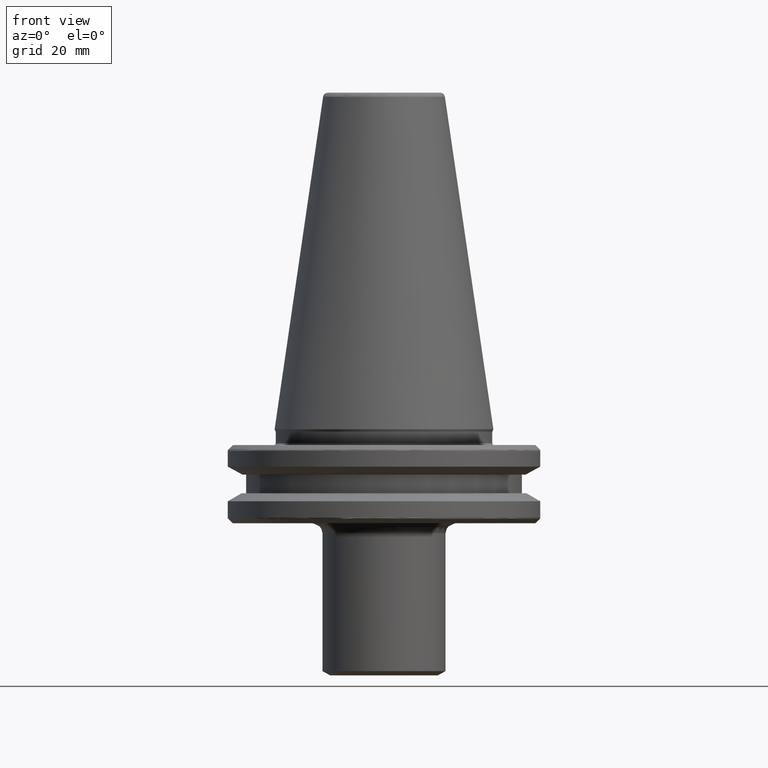
[diagram: clean part render]
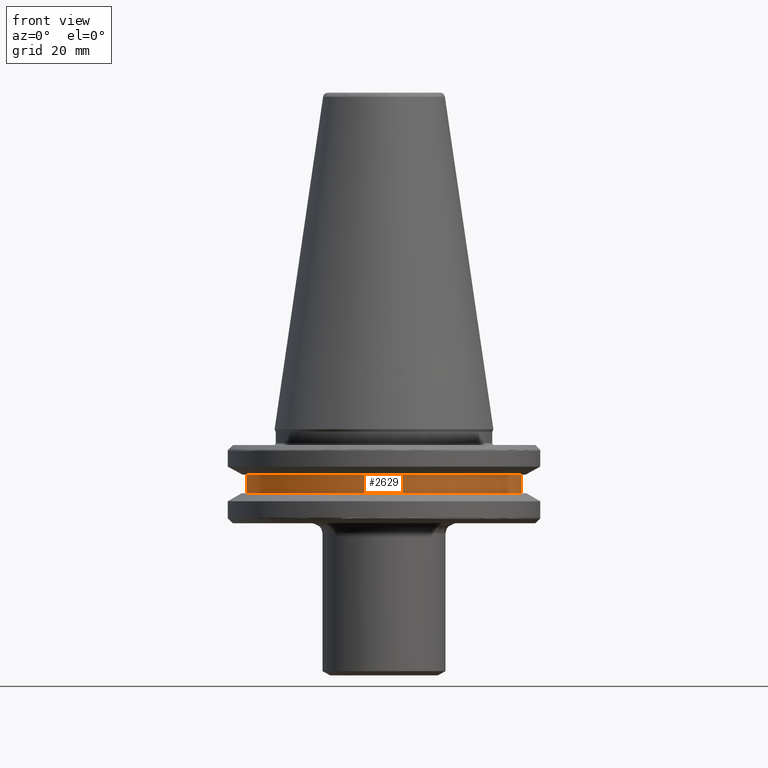
[diagram: same view with one face highlighted and labeled with its STEP entity id]
A machine part, front view. The second image highlights one B-rep face of the part: STEP entity #2629.
In plain terms, the highlighted cylindrical surface (partial cylindrical patch) has radius 28 mm, axis along (0, 0, 1).
Its self-contained STEP definition (entity closure, byte-faithful):
#116 = CARTESIAN_POINT ( 'NONE',  ( 28.00000000000000000, 0.0000000000000000000, -12.99999999999999800 ) ) ;
#212 = DIRECTION ( 'NONE',  ( -0.0000000000000000000, -0.0000000000000000000, -1.000000000000000000 ) ) ;
#371 = DIRECTION ( 'NONE',  ( 1.000000000000000000, 0.0000000000000000000, 0.0000000000000000000 ) ) ;
#383 = AXIS2_PLACEMENT_3D ( 'NONE', #1083, #1113, #2713 ) ;
#479 = AXIS2_PLACEMENT_3D ( 'NONE', #980, #212, #971 ) ;
#548 = ORIENTED_EDGE ( 'NONE', *, *, #550, .F. ) ;
#550 = EDGE_CURVE ( 'NONE', #1000, #2178, #2776, .T. ) ;
#581 = EDGE_CURVE ( 'NONE', #1892, #921, #883, .T. ) ;
#608 = EDGE_CURVE ( 'NONE', #921, #2178, #2128, .T. ) ;
#738 = DIRECTION ( 'NONE',  ( 0.0000000000000000000, 0.0000000000000000000, 1.000000000000000000 ) ) ;
#761 = CARTESIAN_POINT ( 'NONE',  ( -28.00000000000000000, 3.429011037612589300E-015, 69.75694866325665100 ) ) ;
#868 = CARTESIAN_POINT ( 'NONE',  ( 28.00000000000000000, 0.0000000000000000000, -9.199999999999999300 ) ) ;
#883 = LINE ( 'NONE', #1474, #1749 ) ;
#921 = VERTEX_POINT ( 'NONE', #868 ) ;
#971 = DIRECTION ( 'NONE',  ( 1.000000000000000000, 0.0000000000000000000, 0.0000000000000000000 ) ) ;
#980 = CARTESIAN_POINT ( 'NONE',  ( 0.0000000000000000000, 0.0000000000000000000, -9.199999999999999300 ) ) ;
#1000 = VERTEX_POINT ( 'NONE', #2884 ) ;
#1083 = CARTESIAN_POINT ( 'NONE',  ( 0.0000000000000000000, 0.0000000000000000000, -12.99999999999999800 ) ) ;
#1099 = FACE_OUTER_BOUND ( 'NONE', #2853, .T. ) ;
#1113 = DIRECTION ( 'NONE',  ( 0.0000000000000000000, 0.0000000000000000000, 1.000000000000000000 ) ) ;
#1196 = CARTESIAN_POINT ( 'NONE',  ( -28.00000000000000000, 3.429011037612589300E-015, -9.199999999999999300 ) ) ;
#1242 = DIRECTION ( 'NONE',  ( 0.0000000000000000000, 0.0000000000000000000, 1.000000000000000000 ) ) ;
#1253 = ORIENTED_EDGE ( 'NONE', *, *, #581, .T. ) ;
#1433 = DIRECTION ( 'NONE',  ( 0.0000000000000000000, 0.0000000000000000000, 1.000000000000000000 ) ) ;
#1474 = CARTESIAN_POINT ( 'NONE',  ( 28.00000000000000000, 0.0000000000000000000, 69.75694866325665100 ) ) ;
#1668 = EDGE_CURVE ( 'NONE', #1000, #1892, #2494, .T. ) ;
#1749 = VECTOR ( 'NONE', #738, 1000.000000000000000 ) ;
#1879 = ORIENTED_EDGE ( 'NONE', *, *, #608, .T. ) ;
#1892 = VERTEX_POINT ( 'NONE', #116 ) ;
#1998 = AXIS2_PLACEMENT_3D ( 'NONE', #2988, #1433, #371 ) ;
#2128 = CIRCLE ( 'NONE', #479, 28.00000000000000000 ) ;
#2178 = VERTEX_POINT ( 'NONE', #1196 ) ;
#2336 = VECTOR ( 'NONE', #1242, 1000.000000000000000 ) ;
#2494 = CIRCLE ( 'NONE', #383, 28.00000000000000000 ) ;
#2629 = ADVANCED_FACE ( 'NONE', ( #1099 ), #2806, .T. ) ;
#2713 = DIRECTION ( 'NONE',  ( 1.000000000000000000, 0.0000000000000000000, 0.0000000000000000000 ) ) ;
#2776 = LINE ( 'NONE', #761, #2336 ) ;
#2806 = CYLINDRICAL_SURFACE ( 'NONE', #1998, 28.00000000000000000 ) ;
#2853 = EDGE_LOOP ( 'NONE', ( #548, #3073, #1253, #1879 ) ) ;
#2884 = CARTESIAN_POINT ( 'NONE',  ( -28.00000000000000000, 3.429011037612589300E-015, -12.99999999999999800 ) ) ;
#2988 = CARTESIAN_POINT ( 'NONE',  ( 0.0000000000000000000, 0.0000000000000000000, 69.75694866325665100 ) ) ;
#3073 = ORIENTED_EDGE ( 'NONE', *, *, #1668, .T. ) ;